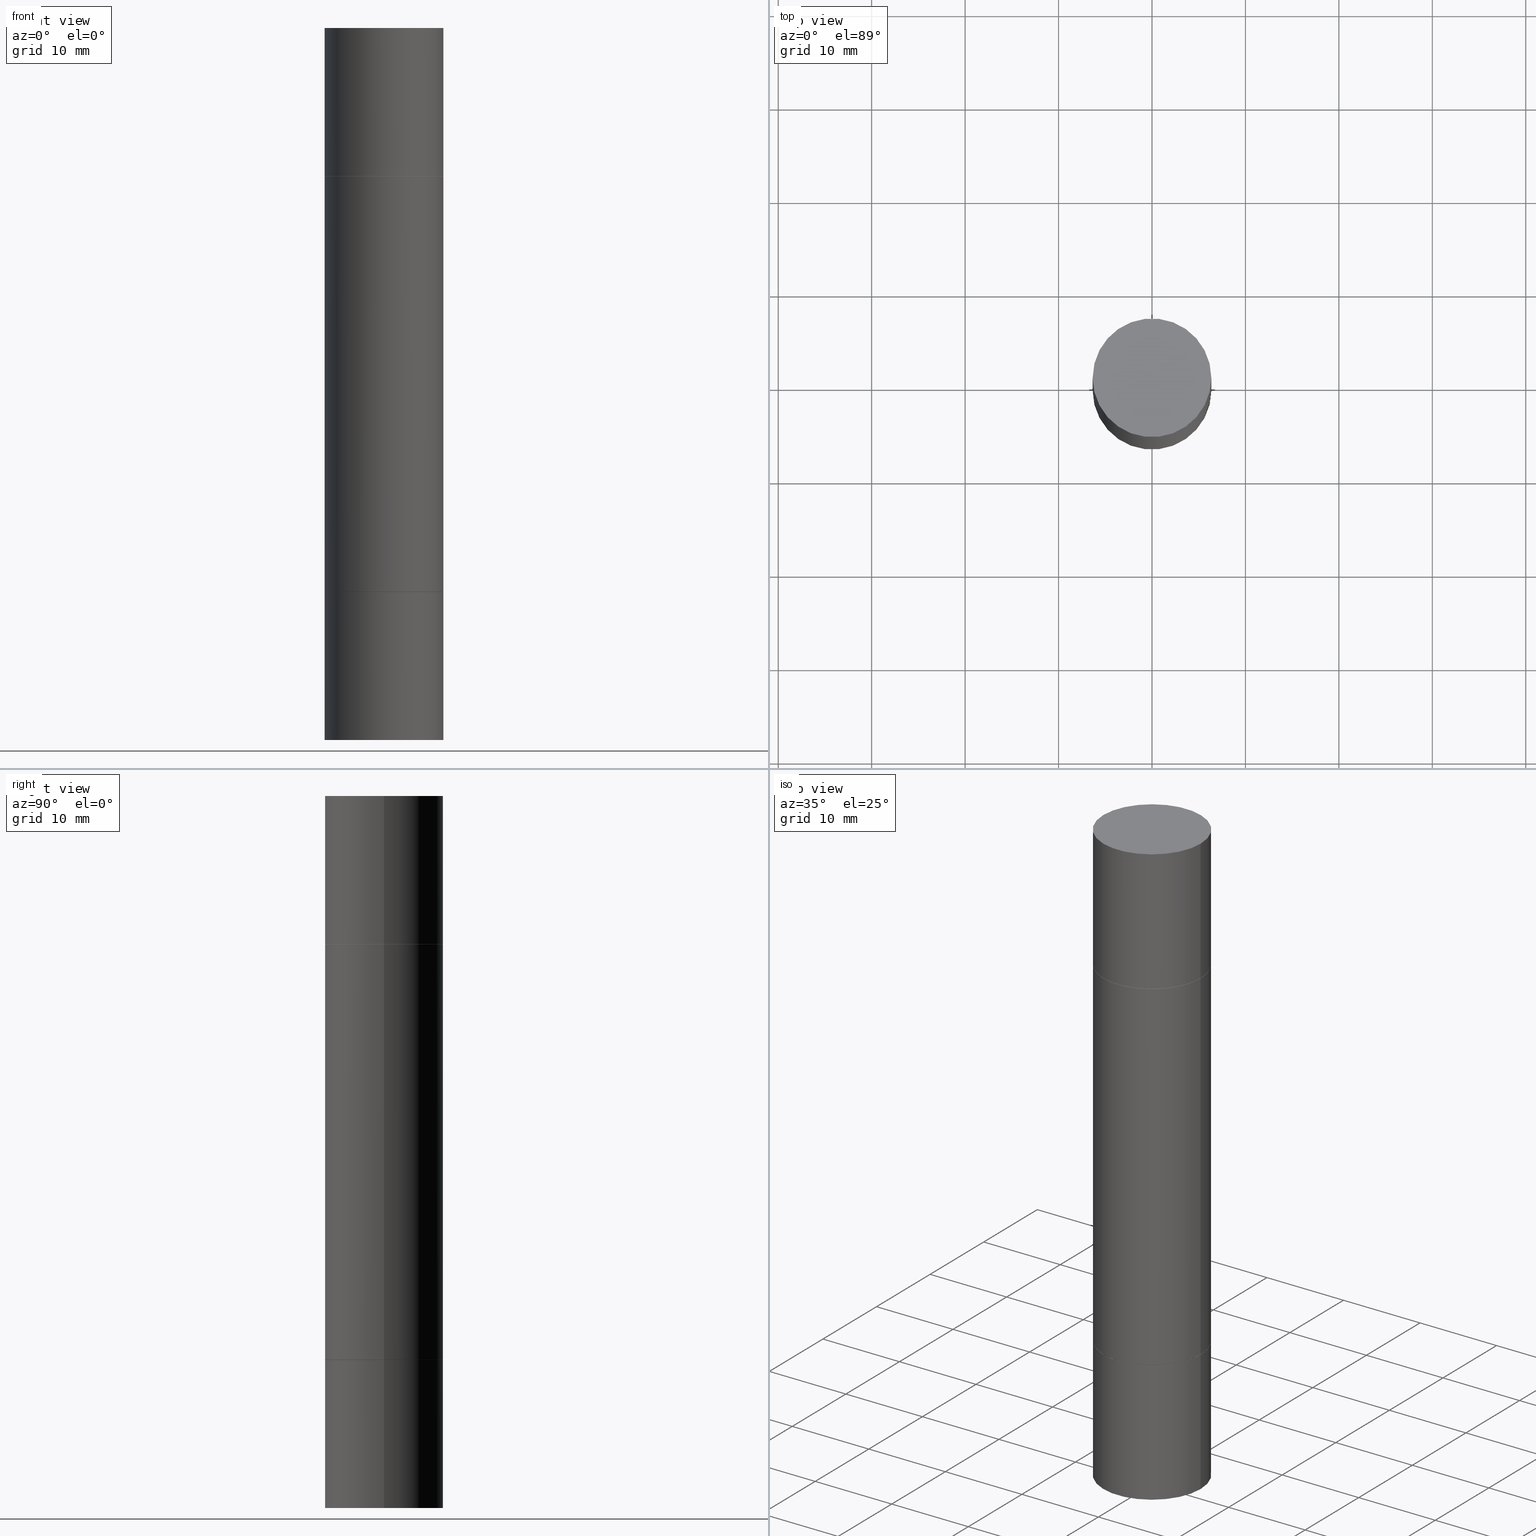
[diagram: canonical four-view strip — front | top / right | iso, engineering-drawing reading convention]
A machine part, canonical four-view strip (front | top / right | iso — engineering-drawing reading convention). The complete STEP part file that produces these views, byte-faithful:
ISO-10303-21;
HEADER;
FILE_DESCRIPTION (( 'STEP AP203' ),
    '1' );
FILE_NAME ('31439.STEP',
    '2024-03-04T15:41:59',
    ( '' ),
    ( '' ),
    'SwSTEP 2.0',
    'SolidWorks 2023',
    '' );
FILE_SCHEMA (( 'CONFIG_CONTROL_DESIGN' ));
ENDSEC;

DATA;
#1 = CARTESIAN_POINT ( 'NONE',  ( 1.745740669421639647E-15, 0.2499999999999895084, -3.000000000000001332 ) ) ;
#2 = AXIS2_PLACEMENT_3D ( 'NONE', #362, #577, #310 ) ;
#3 = DIRECTION ( 'NONE',  ( 1.000000000000000000, -6.982962677686269866E-15, 0.000000000000000000 ) ) ;
#4 = CONICAL_SURFACE ( 'NONE', #574, 0.2489999999999999991, 0.7853981633974141952 ) ;
#5 = APPLICATION_PROTOCOL_DEFINITION ( 'international standard', 'config_control_design', 1994, #153 ) ;
#6 = DIRECTION ( 'NONE',  ( -2.445468806185136877E-29, -3.492890411551753071E-15, -1.000000000000000000 ) ) ;
#7 = EDGE_LOOP ( 'NONE', ( #33, #468 ) ) ;
#8 = EDGE_CURVE ( 'NONE', #83, #460, #102, .T. ) ;
#9 = EDGE_CURVE ( 'NONE', #83, #144, #500, .T. ) ;
#10 = FACE_OUTER_BOUND ( 'NONE', #363, .T. ) ;
#11 = DIRECTION ( 'NONE',  ( -2.445468806185136597E-29, -3.492890411551752677E-15, -1.000000000000000000 ) ) ;
#12 = DIRECTION ( 'NONE',  ( 1.000000000000000000, -6.982962677686269866E-15, 0.000000000000000000 ) ) ;
#13 = EDGE_CURVE ( 'NONE', #666, #244, #616, .T. ) ;
#14 = ORIENTED_EDGE ( 'NONE', *, *, #49, .F. ) ;
#15 = CARTESIAN_POINT ( 'NONE',  ( 5.805542945883514935E-29, -2.184435788568482141E-15, -0.6259999999999990017 ) ) ;
#16 = CONICAL_SURFACE ( 'NONE', #445, 0.2489999999999999991, 0.7853981633974141952 ) ;
#17 = ORIENTED_EDGE ( 'NONE', *, *, #436, .T. ) ;
#18 = EDGE_CURVE ( 'NONE', #606, #84, #285, .T. ) ;
#19 = DIRECTION ( 'NONE',  ( 1.000000000000000000, -6.982962677686267499E-15, 0.000000000000000000 ) ) ;
#20 = DIRECTION ( 'NONE',  ( 1.000000000000000000, -6.982962677686266711E-15, 0.000000000000000000 ) ) ;
#21 = ORIENTED_EDGE ( 'NONE', *, *, #106, .T. ) ;
#22 = APPROVAL_DATE_TIME ( #599, #631 ) ;
#23 = LINE ( 'NONE', #235, #126 ) ;
#24 = AXIS2_PLACEMENT_3D ( 'NONE', #41, #210, #313 ) ;
#25 = FACE_OUTER_BOUND ( 'NONE', #80, .T. ) ;
#26 = ORIENTED_EDGE ( 'NONE', *, *, #494, .F. ) ;
#27 = ORIENTED_EDGE ( 'NONE', *, *, #49, .T. ) ;
#28 = DIRECTION ( 'NONE',  ( -2.445468806185136597E-29, -3.492890411551752677E-15, -1.000000000000000000 ) ) ;
#29 = EDGE_LOOP ( 'NONE', ( #74, #663 ) ) ;
#30 = EDGE_LOOP ( 'NONE', ( #325, #136, #141, #137 ) ) ;
#31 = ORIENTED_EDGE ( 'NONE', *, *, #204, .F. ) ;
#32 = CARTESIAN_POINT ( 'NONE',  ( 3.668203209277703774E-29, -5.237222008264716599E-15, -1.499999999999999556 ) ) ;
#33 = ORIENTED_EDGE ( 'NONE', *, *, #121, .T. ) ;
#34 = ORIENTED_EDGE ( 'NONE', *, *, #376, .F. ) ;
#35 = AXIS2_PLACEMENT_3D ( 'NONE', #668, #305, #95 ) ;
#36 = LOCAL_TIME ( 10, 41, 59.00000000000000000, #383 ) ;
#37 = CARTESIAN_POINT ( 'NONE',  ( 0.000000000000000000, 0.000000000000000000, -1.499999999999999556 ) ) ;
#38 = VERTEX_POINT ( 'NONE', #256 ) ;
#39 = DIRECTION ( 'NONE',  ( 0.000000000000000000, 1.000000000000000000, -3.278217592397118229E-15 ) ) ;
#40 = ORIENTED_EDGE ( 'NONE', *, *, #644, .T. ) ;
#41 = CARTESIAN_POINT ( 'NONE',  ( 5.807988414689700538E-29, -2.180942898156930788E-15, -0.6249999999999988898 ) ) ;
#42 = CARTESIAN_POINT ( 'NONE',  ( 0.2500000000000000000, -3.930176457990049608E-15, -0.6259999999999990017 ) ) ;
#43 = ADVANCED_FACE ( 'NONE', ( #421 ), #209, .T. ) ;
#44 = ORIENTED_EDGE ( 'NONE', *, *, #207, .F. ) ;
#45 = AXIS2_PLACEMENT_3D ( 'NONE', #365, #515, #373 ) ;
#46 = CIRCLE ( 'NONE', #56, 0.2500000000000000000 ) ;
#47 = CARTESIAN_POINT ( 'NONE',  ( 5.807988414689700538E-29, -2.180942898156930788E-15, -0.6249999999999988898 ) ) ;
#48 = DIRECTION ( 'NONE',  ( 2.438088387897959769E-29, 3.492890411551753071E-15, 1.000000000000000000 ) ) ;
#49 = EDGE_CURVE ( 'NONE', #656, #619, #154, .T. ) ;
#50 = FACE_OUTER_BOUND ( 'NONE', #190, .T. ) ;
#51 = FACE_OUTER_BOUND ( 'NONE', #504, .T. ) ;
#52 = CARTESIAN_POINT ( 'NONE',  ( 0.2489999999999999991, -3.919700604900811057E-15, -0.6249999999999988898 ) ) ;
#53 = DIRECTION ( 'NONE',  ( 1.000000000000000000, -6.982962677686266711E-15, 0.000000000000000000 ) ) ;
#54 = CALENDAR_DATE ( 2024, 4, 3 ) ;
#55 = CIRCLE ( 'NONE', #193, 0.2500000000000000000 ) ;
#56 = AXIS2_PLACEMENT_3D ( 'NONE', #586, #115, #385 ) ;
#57 = DIRECTION ( 'NONE',  ( 2.438088387897959769E-29, 3.492890411551753071E-15, 1.000000000000000000 ) ) ;
#58 = ADVANCED_FACE ( 'NONE', ( #426 ), #157, .T. ) ;
#59 =( CONVERSION_BASED_UNIT ( 'INCH', #529 ) LENGTH_UNIT ( ) NAMED_UNIT ( #148 ) );
#60 = ADVANCED_FACE ( 'NONE', ( #314 ), #476, .F. ) ;
#61 = DIRECTION ( 'NONE',  ( 1.000000000000000000, -6.982962677686265922E-15, 4.876176775795935793E-29 ) ) ;
#62 = ADVANCED_FACE ( 'NONE', ( #51 ), #100, .T. ) ;
#63 = CYLINDRICAL_SURFACE ( 'NONE', #225, 0.2500000000000000000 ) ;
#64 = EDGE_CURVE ( 'NONE', #651, #123, #311, .T. ) ;
#65 = APPROVAL_STATUS ( 'not_yet_approved' ) ;
#66 = CARTESIAN_POINT ( 'NONE',  ( 5.807988414689700538E-29, -8.292268179752471696E-15, -2.375000000000000000 ) ) ;
#67 = PRODUCT_DEFINITION_FORMATION_WITH_SPECIFIED_SOURCE ( 'ANY', '', #575, .NOT_KNOWN. ) ;
#68 =( NAMED_UNIT ( * ) SI_UNIT ( $, .STERADIAN. ) SOLID_ANGLE_UNIT ( ) );
#69 = ORIENTED_EDGE ( 'NONE', *, *, #97, .F. ) ;
#70 = DIRECTION ( 'NONE',  ( -2.445468806185136597E-29, -3.492890411551752677E-15, -1.000000000000000000 ) ) ;
#71 = DIRECTION ( 'NONE',  ( 1.000000000000000000, -6.982962677686270655E-15, 0.000000000000000000 ) ) ;
#72 = PERSON_AND_ORGANIZATION ( #555, #392 ) ;
#73 = CARTESIAN_POINT ( 'NONE',  ( 0.2500000000000000000, -3.926683567578497071E-15, -0.6249999999999988898 ) ) ;
#74 = ORIENTED_EDGE ( 'NONE', *, *, #350, .T. ) ;
#75 = VECTOR ( 'NONE', #261, 39.37007874015748143 ) ;
#76 = EDGE_CURVE ( 'NONE', #244, #666, #214, .T. ) ;
#77 = APPROVAL_DATE_TIME ( #122, #246 ) ;
#78 = CARTESIAN_POINT ( 'NONE',  ( -0.2489999999999999991, -4.709950929187094786E-16, -0.6249999999999988898 ) ) ;
#79 = EDGE_CURVE ( 'NONE', #354, #257, #379, .T. ) ;
#80 = EDGE_LOOP ( 'NONE', ( #237, #26 ) ) ;
#81 = ORIENTED_EDGE ( 'NONE', *, *, #436, .F. ) ;
#82 = DIRECTION ( 'NONE',  ( 0.000000000000000000, 1.000000000000000000, -3.492185875197449524E-15 ) ) ;
#83 = VERTEX_POINT ( 'NONE', #42 ) ;
#84 = VERTEX_POINT ( 'NONE', #367 ) ;
#85 = EDGE_CURVE ( 'NONE', #198, #659, #334, .T. ) ;
#86 = DIRECTION ( 'NONE',  ( -2.445468806185136597E-29, 3.491481338843145583E-15, 1.000000000000000000 ) ) ;
#87 = VERTEX_POINT ( 'NONE', #318 ) ;
#88 = VECTOR ( 'NONE', #423, 39.37007874015748143 ) ;
#89 = MANIFOLD_SOLID_BREP ( 'Mirror1[3]', #572 ) ;
#90 = ADVANCED_BREP_SHAPE_REPRESENTATION ( '31439', ( #330, #105, #89, #101, #549, #446 ), #381 ) ;
#91 = CONICAL_SURFACE ( 'NONE', #537, 0.2489999999999999991, 0.7853981633974141952 ) ;
#92 = LOCAL_TIME ( 10, 41, 59.00000000000000000, #177 ) ;
#93 = CARTESIAN_POINT ( 'NONE',  ( 5.807988414689700538E-29, -2.180942898156930788E-15, -0.6249999999999988898 ) ) ;
#94 = ORIENTED_EDGE ( 'NONE', *, *, #644, .F. ) ;
#95 = DIRECTION ( 'NONE',  ( 1.000000000000000000, -6.982962677686266711E-15, 0.000000000000000000 ) ) ;
#96 = DIRECTION ( 'NONE',  ( 1.000000000000000000, -6.982962677686266711E-15, 0.000000000000000000 ) ) ;
#97 = EDGE_CURVE ( 'NONE', #659, #198, #389, .T. ) ;
#98 = ORIENTED_EDGE ( 'NONE', *, *, #121, .F. ) ;
#99 = DIRECTION ( 'NONE',  ( -1.000000000000000000, 6.982962677686265922E-15, -9.839502134516470631E-33 ) ) ;
#100 = CYLINDRICAL_SURFACE ( 'NONE', #2, 0.2500000000000000000 ) ;
#101 = MANIFOLD_SOLID_BREP ( 'Mirror1[4]', #583 ) ;
#102 = CIRCLE ( 'NONE', #345, 0.2500000000000000000 ) ;
#103 = AXIS2_PLACEMENT_3D ( 'NONE', #1, #108, #366 ) ;
#104 = CARTESIAN_POINT ( 'NONE',  ( -0.2500000000000000000, -4.693112891255996450E-16, -0.6259999999999990017 ) ) ;
#105 = MANIFOLD_SOLID_BREP ( 'Mirror1[1]', #202 ) ;
#106 = EDGE_CURVE ( 'NONE', #198, #664, #523, .T. ) ;
#107 = DIRECTION ( 'NONE',  ( -2.445468806185136877E-29, -3.492890411551753071E-15, -1.000000000000000000 ) ) ;
#108 = DIRECTION ( 'NONE',  ( 2.438088387897960049E-29, -3.491481338843145188E-15, -1.000000000000000000 ) ) ;
#109 = DIRECTION ( 'NONE',  ( -1.000000000000000000, 6.982962677686265922E-15, -9.839502134516470631E-33 ) ) ;
#110 = DIRECTION ( 'NONE',  ( -2.445468806185136597E-29, 3.491481338843145583E-15, 1.000000000000000000 ) ) ;
#111 = ORIENTED_EDGE ( 'NONE', *, *, #349, .F. ) ;
#112 = ORIENTED_EDGE ( 'NONE', *, *, #376, .T. ) ;
#113 = DIRECTION ( 'NONE',  ( -2.445468806185136597E-29, 3.491481338843145583E-15, 1.000000000000000000 ) ) ;
#114 = AXIS2_PLACEMENT_3D ( 'NONE', #605, #145, #135 ) ;
#115 = DIRECTION ( 'NONE',  ( 2.445468806185136597E-29, 3.492890411551752677E-15, 1.000000000000000000 ) ) ;
#116 = ORIENTED_EDGE ( 'NONE', *, *, #567, .F. ) ;
#117 = FACE_OUTER_BOUND ( 'NONE', #155, .T. ) ;
#118 = EDGE_CURVE ( 'NONE', #656, #542, #248, .T. ) ;
#119 = PERSON_AND_ORGANIZATION ( #555, #392 ) ;
#120 = DIRECTION ( 'NONE',  ( -2.445468806185136597E-29, 3.491481338843145583E-15, 1.000000000000000000 ) ) ;
#121 = EDGE_CURVE ( 'NONE', #619, #498, #368, .T. ) ;
#122 = DATE_AND_TIME ( #592, #538 ) ;
#123 = VERTEX_POINT ( 'NONE', #618 ) ;
#124 = LINE ( 'NONE', #636, #518 ) ;
#125 = AXIS2_PLACEMENT_3D ( 'NONE', #623, #48, #517 ) ;
#126 = VECTOR ( 'NONE', #293, 39.37007874015748143 ) ;
#127 = APPROVAL_PERSON_ORGANIZATION ( #229, #430, #441 ) ;
#128 = ORIENTED_EDGE ( 'NONE', *, *, #9, .T. ) ;
#129 = DIRECTION ( 'NONE',  ( 1.000000000000000000, -6.982962677686270655E-15, 0.000000000000000000 ) ) ;
#130 = EDGE_CURVE ( 'NONE', #547, #257, #474, .T. ) ;
#131 = DIRECTION ( 'NONE',  ( 1.000000000000000000, -6.982962677686266711E-15, 4.876176775795935793E-29 ) ) ;
#132 = ORIENTED_EDGE ( 'NONE', *, *, #290, .T. ) ;
#133 = ADVANCED_FACE ( 'NONE', ( #628 ), #165, .T. ) ;
#134 = PERSON_AND_ORGANIZATION ( #555, #392 ) ;
#135 = DIRECTION ( 'NONE',  ( 1.000000000000000000, -6.982962677686262766E-15, 0.000000000000000000 ) ) ;
#136 = ORIENTED_EDGE ( 'NONE', *, *, #349, .T. ) ;
#137 = ORIENTED_EDGE ( 'NONE', *, *, #233, .F. ) ;
#138 = CC_DESIGN_PERSON_AND_ORGANIZATION_ASSIGNMENT ( #652, #292, ( #67 ) ) ;
#139 = AXIS2_PLACEMENT_3D ( 'NONE', #270, #327, #232 ) ;
#140 = CARTESIAN_POINT ( 'NONE',  ( -0.2500000000000000000, -4.693112891255996450E-16, -0.6259999999999990017 ) ) ;
#141 = ORIENTED_EDGE ( 'NONE', *, *, #472, .T. ) ;
#142 = ORIENTED_EDGE ( 'NONE', *, *, #481, .T. ) ;
#143 = ADVANCED_FACE ( 'NONE', ( #484 ), #230, .T. ) ;
#144 = VERTEX_POINT ( 'NONE', #340 ) ;
#145 = DIRECTION ( 'NONE',  ( -2.445468806185136597E-29, 3.491481338843145583E-15, 1.000000000000000000 ) ) ;
#146 = ORIENTED_EDGE ( 'NONE', *, *, #130, .T. ) ;
#147 = EDGE_LOOP ( 'NONE', ( #411, #34 ) ) ;
#148 = DIMENSIONAL_EXPONENTS ( 1.000000000000000000, 0.000000000000000000, 0.000000000000000000, 0.000000000000000000, 0.000000000000000000, 0.000000000000000000, 0.000000000000000000 ) ;
#149 = CARTESIAN_POINT ( 'NONE',  ( 5.807988414689700538E-29, -8.292268179752471696E-15, -2.375000000000000000 ) ) ;
#150 = ORIENTED_EDGE ( 'NONE', *, *, #8, .F. ) ;
#151 = AXIS2_PLACEMENT_3D ( 'NONE', #220, #329, #428 ) ;
#152 = CARTESIAN_POINT ( 'NONE',  ( 5.805542945883514935E-29, -2.184435788568482141E-15, -0.6259999999999990017 ) ) ;
#153 = APPLICATION_CONTEXT ( 'configuration controlled 3d designs of mechanical parts and assemblies' ) ;
#154 = LINE ( 'NONE', #466, #301 ) ;
#155 = EDGE_LOOP ( 'NONE', ( #553, #602, #585, #247 ) ) ;
#156 = CARTESIAN_POINT ( 'NONE',  ( 0.2489999999999999991, -3.919700604900811057E-15, -0.6249999999999988898 ) ) ;
#157 = PLANE ( 'NONE',  #548 ) ;
#158 = ADVANCED_FACE ( 'NONE', ( #181 ), #63, .T. ) ;
#159 = PLANE ( 'NONE',  #277 ) ;
#160 = DIRECTION ( 'NONE',  ( 0.7071067811865232589, -2.468850131082003836E-15, 0.7071067811865715536 ) ) ;
#161 = AXIS2_PLACEMENT_3D ( 'NONE', #669, #320, #579 ) ;
#162 = CIRCLE ( 'NONE', #35, 0.2500000000000000000 ) ;
#163 = CARTESIAN_POINT ( 'NONE',  ( 5.807988414689700538E-29, -2.180942898156930788E-15, -0.6249999999999988898 ) ) ;
#164 = CIRCLE ( 'NONE', #228, 0.2500000000000000000 ) ;
#165 = CYLINDRICAL_SURFACE ( 'NONE', #258, 0.2499999999999998335 ) ;
#166 = ADVANCED_FACE ( 'NONE', ( #223 ), #387, .T. ) ;
#167 = DIRECTION ( 'NONE',  ( -1.000000000000000000, 6.982962677686265922E-15, -4.876176775795935793E-29 ) ) ;
#168 = DIRECTION ( 'NONE',  ( 2.445468806185136597E-29, 3.492890411551752677E-15, 1.000000000000000000 ) ) ;
#169 = CARTESIAN_POINT ( 'NONE',  ( 0.2500000000000000000, -1.743627060358652092E-15, 1.092739197465705287E-15 ) ) ;
#170 = CARTESIAN_POINT ( 'NONE',  ( 0.000000000000000000, -1.047655762559234344E-14, -2.999999999999999112 ) ) ;
#171 = VECTOR ( 'NONE', #576, 39.37007874015748854 ) ;
#172 = EDGE_CURVE ( 'NONE', #84, #606, #400, .T. ) ;
#173 = DIRECTION ( 'NONE',  ( -2.438088387897960049E-29, 3.491481338843145188E-15, 1.000000000000000000 ) ) ;
#174 = CONICAL_SURFACE ( 'NONE', #217, 0.2489999999999999991, 0.7853981633974141952 ) ;
#175 = PERSON_AND_ORGANIZATION_ROLE ( 'design_owner' ) ;
#176 = CARTESIAN_POINT ( 'NONE',  ( 0.2489999999999999991, -1.003102588649635236E-14, -2.375000000000000000 ) ) ;
#177 = COORDINATED_UNIVERSAL_TIME_OFFSET ( 5, 0, .BEHIND. ) ;
#178 = CARTESIAN_POINT ( 'NONE',  ( -0.2500000000000000000, 6.257098548958748880E-16, 1.092739197465709232E-15 ) ) ;
#179 = ORIENTED_EDGE ( 'NONE', *, *, #9, .F. ) ;
#180 = PERSON_AND_ORGANIZATION_ROLE ( 'design_supplier' ) ;
#181 = FACE_OUTER_BOUND ( 'NONE', #300, .T. ) ;
#182 = CIRCLE ( 'NONE', #114, 0.2500000000000000000 ) ;
#183 = LOCAL_TIME ( 10, 41, 59.00000000000000000, #649 ) ;
#184 = DATE_AND_TIME ( #344, #183 ) ;
#185 = FACE_OUTER_BOUND ( 'NONE', #532, .T. ) ;
#186 = EDGE_LOOP ( 'NONE', ( #596, #94 ) ) ;
#187 = COORDINATED_UNIVERSAL_TIME_OFFSET ( 5, 0, .BEHIND. ) ;
#188 = CC_DESIGN_DATE_AND_TIME_ASSIGNMENT ( #184, #393, ( #478 ) ) ;
#189 = LINE ( 'NONE', #398, #369 ) ;
#190 = EDGE_LOOP ( 'NONE', ( #552, #276, #295, #603 ) ) ;
#191 = CARTESIAN_POINT ( 'NONE',  ( 0.000000000000000000, 0.000000000000000000, 0.000000000000000000 ) ) ;
#192 = CARTESIAN_POINT ( 'NONE',  ( 0.2499999999999998335, -1.222229829501391012E-14, -2.999999999999999112 ) ) ;
#193 = AXIS2_PLACEMENT_3D ( 'NONE', #590, #120, #641 ) ;
#194 = CYLINDRICAL_SURFACE ( 'NONE', #347, 0.2499999999999998335 ) ;
#195 = EDGE_LOOP ( 'NONE', ( #116, #150, #128, #339 ) ) ;
#196 = CC_DESIGN_PERSON_AND_ORGANIZATION_ASSIGNMENT ( #341, #180, ( #67 ) ) ;
#197 = FACE_OUTER_BOUND ( 'NONE', #29, .T. ) ;
#198 = VERTEX_POINT ( 'NONE', #176 ) ;
#199 = ORIENTED_EDGE ( 'NONE', *, *, #667, .F. ) ;
#200 = CARTESIAN_POINT ( 'NONE',  ( -0.2500000000000000000, -8.761433126149462132E-15, -2.999999999999999112 ) ) ;
#201 = DIRECTION ( 'NONE',  ( 1.000000000000000000, -6.982962677686269866E-15, 0.000000000000000000 ) ) ;
#202 = CLOSED_SHELL ( 'NONE', ( #440, #331, #372, #658, #241, #166 ) ) ;
#203 = APPROVAL_PERSON_ORGANIZATION ( #534, #246, #274 ) ;
#204 = EDGE_CURVE ( 'NONE', #659, #513, #227, .T. ) ;
#205 = DIRECTION ( 'NONE',  ( -2.445468806185136597E-29, -3.492890411551752677E-15, -1.000000000000000000 ) ) ;
#206 = CARTESIAN_POINT ( 'NONE',  ( 7.336406418555409790E-29, 2.113609062914567177E-18, 1.092739197465705287E-15 ) ) ;
#207 = EDGE_CURVE ( 'NONE', #498, #619, #55, .T. ) ;
#208 = DIRECTION ( 'NONE',  ( 1.000000000000000000, -6.982962677686266711E-15, 0.000000000000000000 ) ) ;
#209 = PLANE ( 'NONE',  #125 ) ;
#210 = DIRECTION ( 'NONE',  ( 2.445468806185136597E-29, 3.492890411551752677E-15, 1.000000000000000000 ) ) ;
#211 = DIRECTION ( 'NONE',  ( 1.000000000000000000, -6.982962677686266711E-15, 0.000000000000000000 ) ) ;
#212 = EDGE_CURVE ( 'NONE', #84, #664, #480, .T. ) ;
#213 = EDGE_CURVE ( 'NONE', #621, #405, #443, .T. ) ;
#214 = CIRCLE ( 'NONE', #434, 0.2500000000000000000 ) ;
#215 = CIRCLE ( 'NONE', #424, 0.2489999999999999991 ) ;
#216 = LINE ( 'NONE', #200, #467 ) ;
#217 = AXIS2_PLACEMENT_3D ( 'NONE', #539, #113, #12 ) ;
#218 = DIRECTION ( 'NONE',  ( -2.445468806185136597E-29, 3.491481338843145583E-15, 1.000000000000000000 ) ) ;
#219 = DIRECTION ( 'NONE',  ( 0.000000000000000000, 0.000000000000000000, 1.000000000000000000 ) ) ;
#220 = CARTESIAN_POINT ( 'NONE',  ( 5.807988414689700538E-29, -2.180942898156930788E-15, -0.6249999999999988898 ) ) ;
#221 = EDGE_CURVE ( 'NONE', #38, #547, #46, .T. ) ;
#222 = LINE ( 'NONE', #531, #519 ) ;
#223 = FACE_OUTER_BOUND ( 'NONE', #195, .T. ) ;
#224 = ORIENTED_EDGE ( 'NONE', *, *, #64, .T. ) ;
#225 = AXIS2_PLACEMENT_3D ( 'NONE', #432, #544, #129 ) ;
#226 = CIRCLE ( 'NONE', #660, 0.2500000000000000000 ) ;
#227 = LINE ( 'NONE', #323, #646 ) ;
#228 = AXIS2_PLACEMENT_3D ( 'NONE', #371, #676, #316 ) ;
#229 = PERSON_AND_ORGANIZATION ( #555, #392 ) ;
#230 = CYLINDRICAL_SURFACE ( 'NONE', #139, 0.2499999999999998335 ) ;
#231 = APPROVAL_STATUS ( 'not_yet_approved' ) ;
#232 = DIRECTION ( 'NONE',  ( 1.000000000000000000, -6.982962677686267499E-15, 0.000000000000000000 ) ) ;
#233 = EDGE_CURVE ( 'NONE', #651, #83, #124, .T. ) ;
#234 = CLOSED_SHELL ( 'NONE', ( #670, #133, #502, #60, #324, #143, #370, #254 ) ) ;
#235 = CARTESIAN_POINT ( 'NONE',  ( 0.2500000000000000000, -1.222229829501391170E-14, -2.999999999999999112 ) ) ;
#236 = CIRCLE ( 'NONE', #584, 0.2499999999999998335 ) ;
#237 = ORIENTED_EDGE ( 'NONE', *, *, #79, .F. ) ;
#238 = CARTESIAN_POINT ( 'NONE',  ( -0.2489999999999999991, -4.726788967118193123E-16, -0.6249999999999988898 ) ) ;
#239 = ORIENTED_EDGE ( 'NONE', *, *, #637, .T. ) ;
#240 = ORIENTED_EDGE ( 'NONE', *, *, #212, .T. ) ;
#241 = ADVANCED_FACE ( 'NONE', ( #541 ), #91, .T. ) ;
#242 = DIRECTION ( 'NONE',  ( 2.438088387897959769E-29, 3.492890411551753071E-15, 1.000000000000000000 ) ) ;
#243 = ORIENTED_EDGE ( 'NONE', *, *, #106, .F. ) ;
#244 = VERTEX_POINT ( 'NONE', #178 ) ;
#245 = DIRECTION ( 'NONE',  ( -2.445468806185136877E-29, 3.491481338843145188E-15, 1.000000000000000000 ) ) ;
#246 = APPROVAL ( #65, 'UNSPECIFIED' ) ;
#247 = ORIENTED_EDGE ( 'NONE', *, *, #79, .T. ) ;
#248 = CIRCLE ( 'NONE', #321, 0.2500000000000000000 ) ;
#249 = CIRCLE ( 'NONE', #629, 0.2499999999999998335 ) ;
#250 = DIRECTION ( 'NONE',  ( 0.000000000000000000, 1.000000000000000000, -3.278217592397118229E-15 ) ) ;
#251 = ORIENTED_EDGE ( 'NONE', *, *, #589, .F. ) ;
#252 = DIRECTION ( 'NONE',  ( 1.000000000000000000, -6.982962677686266711E-15, 0.000000000000000000 ) ) ;
#253 = ORIENTED_EDGE ( 'NONE', *, *, #8, .T. ) ;
#254 = ADVANCED_FACE ( 'NONE', ( #382 ), #535, .F. ) ;
#255 = CARTESIAN_POINT ( 'NONE',  ( -0.2500000000000000000, -7.606999258740704349E-15, -3.000000000000000444 ) ) ;
#256 = CARTESIAN_POINT ( 'NONE',  ( 0.2500000000000000000, -1.743627060358652092E-15, 1.092739197465705287E-15 ) ) ;
#257 = VERTEX_POINT ( 'NONE', #272 ) ;
#258 = AXIS2_PLACEMENT_3D ( 'NONE', #582, #70, #19 ) ;
#259 = AXIS2_PLACEMENT_3D ( 'NONE', #66, #173, #61 ) ;
#260 = ADVANCED_FACE ( 'NONE', ( #117 ), #533, .T. ) ;
#261 = DIRECTION ( 'NONE',  ( -2.445468806185136877E-29, -3.492890411551753071E-15, -1.000000000000000000 ) ) ;
#262 = DIRECTION ( 'NONE',  ( 1.000000000000000000, -6.982962677686266711E-15, 0.000000000000000000 ) ) ;
#263 = EDGE_CURVE ( 'NONE', #666, #458, #489, .T. ) ;
#264 = CARTESIAN_POINT ( 'NONE',  ( 0.000000000000000000, 0.000000000000000000, 0.000000000000000000 ) ) ;
#265 = CARTESIAN_POINT ( 'NONE',  ( 5.807988414689700538E-29, -8.292268179752471696E-15, -2.375000000000000000 ) ) ;
#266 = CARTESIAN_POINT ( 'NONE',  ( 0.2500000000000000000, -1.222018468595100303E-14, -3.000000000000000444 ) ) ;
#267 = DIRECTION ( 'NONE',  ( -2.445468806185136877E-29, 3.491481338843145188E-15, 1.000000000000000000 ) ) ;
#268 = VECTOR ( 'NONE', #299, 39.37007874015748854 ) ;
#269 = FACE_OUTER_BOUND ( 'NONE', #352, .T. ) ;
#270 = CARTESIAN_POINT ( 'NONE',  ( 0.000000000000000000, -1.047655762559234344E-14, -2.999999999999999112 ) ) ;
#271 =( NAMED_UNIT ( * ) PLANE_ANGLE_UNIT ( ) SI_UNIT ( $, .RADIAN. ) );
#272 = CARTESIAN_POINT ( 'NONE',  ( -0.2500000000000000000, 6.257098548958748880E-16, -0.6249999999999988898 ) ) ;
#273 = CARTESIAN_POINT ( 'NONE',  ( 0.000000000000000000, -1.047655762559234344E-14, -2.999999999999999112 ) ) ;
#274 = APPROVAL_ROLE ( '' ) ;
#275 = VECTOR ( 'NONE', #6, 39.37007874015748143 ) ;
#276 = ORIENTED_EDGE ( 'NONE', *, *, #448, .T. ) ;
#277 = AXIS2_PLACEMENT_3D ( 'NONE', #412, #522, #167 ) ;
#278 = DIRECTION ( 'NONE',  ( -2.445468806185136597E-29, -3.492890411551752677E-15, -1.000000000000000000 ) ) ;
#279 = PERSON_AND_ORGANIZATION ( #555, #392 ) ;
#280 = DIRECTION ( 'NONE',  ( 1.000000000000000000, -6.982962677686266711E-15, 0.000000000000000000 ) ) ;
#281 = EDGE_LOOP ( 'NONE', ( #291, #560, #98, #14 ) ) ;
#282 = APPROVAL_ROLE ( '' ) ;
#283 = FACE_OUTER_BOUND ( 'NONE', #30, .T. ) ;
#284 = ORIENTED_EDGE ( 'NONE', *, *, #76, .T. ) ;
#285 = CIRCLE ( 'NONE', #413, 0.2500000000000000000 ) ;
#286 = FACE_OUTER_BOUND ( 'NONE', #343, .T. ) ;
#287 = AXIS2_PLACEMENT_3D ( 'NONE', #152, #617, #516 ) ;
#288 = ORIENTED_EDGE ( 'NONE', *, *, #567, .T. ) ;
#289 = CC_DESIGN_SECURITY_CLASSIFICATION ( #478, ( #67 ) ) ;
#290 = EDGE_CURVE ( 'NONE', #547, #38, #226, .T. ) ;
#291 = ORIENTED_EDGE ( 'NONE', *, *, #118, .T. ) ;
#292 = PERSON_AND_ORGANIZATION_ROLE ( 'creator' ) ;
#293 = DIRECTION ( 'NONE',  ( -2.445468806185136877E-29, -3.492890411551753071E-15, -1.000000000000000000 ) ) ;
#294 = EDGE_LOOP ( 'NONE', ( #546, #132 ) ) ;
#295 = ORIENTED_EDGE ( 'NONE', *, *, #18, .T. ) ;
#296 = DIRECTION ( 'NONE',  ( 1.000000000000000000, -6.982962677686266711E-15, 0.000000000000000000 ) ) ;
#297 = ORIENTED_EDGE ( 'NONE', *, *, #494, .T. ) ;
#298 = EDGE_LOOP ( 'NONE', ( #540, #416, #17, #358 ) ) ;
#299 = DIRECTION ( 'NONE',  ( -0.7071067811865232589, 2.381258160591016070E-15, -0.7071067811865715536 ) ) ;
#300 = EDGE_LOOP ( 'NONE', ( #593, #146, #297, #315 ) ) ;
#301 = VECTOR ( 'NONE', #267, 39.37007874015748143 ) ;
#302 = UNCERTAINTY_MEASURE_WITH_UNIT (LENGTH_MEASURE( 1.000000000000000082E-05 ), #59, 'distance_accuracy_value', 'NONE');
#303 = CARTESIAN_POINT ( 'NONE',  ( -0.2500000000000000000, -3.522097508821832131E-15, -2.374000000000000110 ) ) ;
#304 = EDGE_LOOP ( 'NONE', ( #199, #559, #240, #488 ) ) ;
#305 = DIRECTION ( 'NONE',  ( 2.445468806185136597E-29, 3.492890411551752677E-15, 1.000000000000000000 ) ) ;
#306 = DIRECTION ( 'NONE',  ( 2.445468806185136597E-29, 3.492890411551752677E-15, 1.000000000000000000 ) ) ;
#307 = EDGE_LOOP ( 'NONE', ( #111, #612, #399, #253 ) ) ;
#308 = EDGE_LOOP ( 'NONE', ( #543, #284 ) ) ;
#309 = DIRECTION ( 'NONE',  ( 1.000000000000000000, -6.982962677686266711E-15, 0.000000000000000000 ) ) ;
#310 = DIRECTION ( 'NONE',  ( 1.000000000000000000, -6.982962677686270655E-15, 0.000000000000000000 ) ) ;
#311 = CIRCLE ( 'NONE', #505, 0.2489999999999999991 ) ;
#312 = AXIS2_PLACEMENT_3D ( 'NONE', #662, #86, #499 ) ;
#313 = DIRECTION ( 'NONE',  ( 1.000000000000000000, -6.982962677686266711E-15, 0.000000000000000000 ) ) ;
#314 = FACE_OUTER_BOUND ( 'NONE', #419, .T. ) ;
#315 = ORIENTED_EDGE ( 'NONE', *, *, #408, .F. ) ;
#316 = DIRECTION ( 'NONE',  ( 1.000000000000000000, -6.982962677686266711E-15, 0.000000000000000000 ) ) ;
#317 = CC_DESIGN_PERSON_AND_ORGANIZATION_ASSIGNMENT ( #279, #175, ( #575 ) ) ;
#318 = CARTESIAN_POINT ( 'NONE',  ( -0.2499999999999998335, -1.995704398973716874E-15, -1.499999999999999556 ) ) ;
#319 = APPLICATION_PROTOCOL_DEFINITION ( 'international standard', 'config_control_design', 1994, #580 ) ;
#320 = DIRECTION ( 'NONE',  ( 2.445468806185136597E-29, 3.492890411551752677E-15, 1.000000000000000000 ) ) ;
#321 = AXIS2_PLACEMENT_3D ( 'NONE', #573, #521, #633 ) ;
#322 = CIRCLE ( 'NONE', #24, 0.2489999999999999991 ) ;
#323 = CARTESIAN_POINT ( 'NONE',  ( -0.2489999999999999991, -6.523016767709821450E-15, -2.375000000000000000 ) ) ;
#324 = ADVANCED_FACE ( 'NONE', ( #491 ), #16, .T. ) ;
#325 = ORIENTED_EDGE ( 'NONE', *, *, #496, .F. ) ;
#326 = ORIENTED_EDGE ( 'NONE', *, *, #639, .F. ) ;
#327 = DIRECTION ( 'NONE',  ( -2.445468806185136597E-29, -3.492890411551752677E-15, -1.000000000000000000 ) ) ;
#328 = DATE_TIME_ROLE ( 'creation_date' ) ;
#329 = DIRECTION ( 'NONE',  ( 2.445468806185136597E-29, 3.492890411551752677E-15, 1.000000000000000000 ) ) ;
#330 = MANIFOLD_SOLID_BREP ( 'Body-Move/Copy2[1]', #527 ) ;
#331 = ADVANCED_FACE ( 'NONE', ( #283 ), #507, .T. ) ;
#332 = ADVANCED_FACE ( 'NONE', ( #286 ), #495, .T. ) ;
#333 = CARTESIAN_POINT ( 'NONE',  ( 5.807988414689700538E-29, -2.180942898156930788E-15, -0.6249999999999988898 ) ) ;
#334 = CIRCLE ( 'NONE', #657, 0.2489999999999999991 ) ;
#335 = ADVANCED_FACE ( 'NONE', ( #25 ), #342, .F. ) ;
#336 = VECTOR ( 'NONE', #645, 39.37007874015748143 ) ;
#337 = CARTESIAN_POINT ( 'NONE',  ( 5.807988414689700538E-29, -2.180942898156930788E-15, -0.6249999999999988898 ) ) ;
#338 = CC_DESIGN_APPROVAL ( #631, ( #478 ) ) ;
#339 = ORIENTED_EDGE ( 'NONE', *, *, #620, .F. ) ;
#340 = CARTESIAN_POINT ( 'NONE',  ( 0.2499999999999998335, -5.456569567838164864E-15, -1.499999999999999556 ) ) ;
#341 = PERSON_AND_ORGANIZATION ( #555, #392 ) ;
#342 = PLANE ( 'NONE',  #477 ) ;
#343 = EDGE_LOOP ( 'NONE', ( #348, #112, #27, #44 ) ) ;
#344 = CALENDAR_DATE ( 2024, 4, 3 ) ;
#345 = AXIS2_PLACEMENT_3D ( 'NONE', #451, #654, #607 ) ;
#346 = FACE_OUTER_BOUND ( 'NONE', #450, .T. ) ;
#347 = AXIS2_PLACEMENT_3D ( 'NONE', #447, #655, #650 ) ;
#348 = ORIENTED_EDGE ( 'NONE', *, *, #356, .F. ) ;
#349 = EDGE_CURVE ( 'NONE', #123, #460, #452, .T. ) ;
#350 = EDGE_CURVE ( 'NONE', #144, #87, #236, .T. ) ;
#351 = FACE_OUTER_BOUND ( 'NONE', #281, .T. ) ;
#352 = EDGE_LOOP ( 'NONE', ( #610, #431, #326, #243 ) ) ;
#353 = CARTESIAN_POINT ( 'NONE',  ( 5.807988414689700538E-29, -2.180942898156930788E-15, -0.6249999999999988898 ) ) ;
#354 = VERTEX_POINT ( 'NONE', #73 ) ;
#355 = CARTESIAN_POINT ( 'NONE',  ( 0.000000000000000000, -1.047655762559234344E-14, -2.999999999999999112 ) ) ;
#356 = EDGE_CURVE ( 'NONE', #542, #498, #189, .T. ) ;
#357 = AXIS2_PLACEMENT_3D ( 'NONE', #170, #11, #482 ) ;
#358 = ORIENTED_EDGE ( 'NONE', *, *, #212, .F. ) ;
#359 = AXIS2_PLACEMENT_3D ( 'NONE', #353, #601, #296 ) ;
#360 = ORIENTED_EDGE ( 'NONE', *, *, #213, .F. ) ;
#361 = DIRECTION ( 'NONE',  ( 2.438088387897959769E-29, 3.492890411551753071E-15, 1.000000000000000000 ) ) ;
#362 = CARTESIAN_POINT ( 'NONE',  ( 0.000000000000000000, -1.047655762559234344E-14, -2.999999999999999112 ) ) ;
#363 = EDGE_LOOP ( 'NONE', ( #224, #556 ) ) ;
#364 = CARTESIAN_POINT ( 'NONE',  ( 5.805542945883514935E-29, -8.288776698413628688E-15, -2.374000000000000110 ) ) ;
#365 = CARTESIAN_POINT ( 'NONE',  ( 5.807988414689700538E-29, -2.180942898156930788E-15, -0.6249999999999988898 ) ) ;
#366 = DIRECTION ( 'NONE',  ( -1.000000000000000000, 6.982962677686265922E-15, -4.876176775795935793E-29 ) ) ;
#367 = CARTESIAN_POINT ( 'NONE',  ( 0.2500000000000000000, -3.930176457990049608E-15, -0.6259999999999990017 ) ) ;
#368 = CIRCLE ( 'NONE', #627, 0.2500000000000000000 ) ;
#369 = VECTOR ( 'NONE', #245, 39.37007874015748143 ) ;
#370 = ADVANCED_FACE ( 'NONE', ( #613 ), #4, .T. ) ;
#371 = CARTESIAN_POINT ( 'NONE',  ( 5.807988414689700538E-29, -2.180942898156930788E-15, -0.6249999999999988898 ) ) ;
#372 = ADVANCED_FACE ( 'NONE', ( #197 ), #409, .F. ) ;
#373 = DIRECTION ( 'NONE',  ( 1.000000000000000000, -6.982962677686265922E-15, 9.839502134516470631E-33 ) ) ;
#374 = DIRECTION ( 'NONE',  ( -2.445468806185136877E-29, -3.492890411551753071E-15, -1.000000000000000000 ) ) ;
#375 = CARTESIAN_POINT ( 'NONE',  ( 1.745740669421639647E-15, 0.2500000000000000000, 5.463695987328526437E-16 ) ) ;
#376 = EDGE_CURVE ( 'NONE', #542, #656, #182, .T. ) ;
#377 = DATE_AND_TIME ( #386, #92 ) ;
#378 = DIRECTION ( 'NONE',  ( 1.000000000000000000, -6.982962677686266711E-15, 0.000000000000000000 ) ) ;
#379 = CIRCLE ( 'NONE', #161, 0.2500000000000000000 ) ;
#380 = AXIS2_PLACEMENT_3D ( 'NONE', #47, #205, #208 ) ;
#381 =( GEOMETRIC_REPRESENTATION_CONTEXT ( 3 ) GLOBAL_UNCERTAINTY_ASSIGNED_CONTEXT ( ( #302 ) ) GLOBAL_UNIT_ASSIGNED_CONTEXT ( ( #59, #271, #68 ) ) REPRESENTATION_CONTEXT ( 'NONE', 'WORKASPACE' ) );
#382 = FACE_OUTER_BOUND ( 'NONE', #403, .T. ) ;
#383 = COORDINATED_UNIVERSAL_TIME_OFFSET ( 5, 0, .BEHIND. ) ;
#384 = ADVANCED_FACE ( 'NONE', ( #346 ), #455, .T. ) ;
#385 = DIRECTION ( 'NONE',  ( 1.000000000000000000, -6.982962677686266711E-15, 0.000000000000000000 ) ) ;
#386 = CALENDAR_DATE ( 2024, 4, 3 ) ;
#387 = CYLINDRICAL_SURFACE ( 'NONE', #357, 0.2499999999999998335 ) ;
#388 = PERSON_AND_ORGANIZATION_ROLE ( 'classification_officer' ) ;
#389 = CIRCLE ( 'NONE', #536, 0.2489999999999999991 ) ;
#390 = AXIS2_PLACEMENT_3D ( 'NONE', #273, #278, #442 ) ;
#391 = DIRECTION ( 'NONE',  ( 2.445468806185136597E-29, 3.492890411551752677E-15, 1.000000000000000000 ) ) ;
#392 = ORGANIZATION ( 'UNSPECIFIED', 'UNSPECIFIED', '' ) ;
#393 = DATE_TIME_ROLE ( 'classification_date' ) ;
#394 = DIRECTION ( 'NONE',  ( -0.7071067811865232589, 2.381258160591016070E-15, -0.7071067811865715536 ) ) ;
#395 = VERTEX_POINT ( 'NONE', #558 ) ;
#396 = ORIENTED_EDGE ( 'NONE', *, *, #472, .F. ) ;
#397 = SHAPE_DEFINITION_REPRESENTATION ( #568, #90 ) ;
#398 = CARTESIAN_POINT ( 'NONE',  ( -0.2500000000000000000, 1.776356839400250465E-15, -1.229733772563726445E-29 ) ) ;
#399 = ORIENTED_EDGE ( 'NONE', *, *, #233, .T. ) ;
#400 = CIRCLE ( 'NONE', #485, 0.2500000000000000000 ) ;
#401 = DIRECTION ( 'NONE',  ( -2.445468806185136597E-29, 3.491481338843145583E-15, 1.000000000000000000 ) ) ;
#402 = AXIS2_PLACEMENT_3D ( 'NONE', #93, #514, #461 ) ;
#403 = EDGE_LOOP ( 'NONE', ( #407, #69 ) ) ;
#404 = PRODUCT_DEFINITION ( 'UNKNOWN', '', #67, #433 ) ;
#405 = VERTEX_POINT ( 'NONE', #78 ) ;
#406 = DIRECTION ( 'NONE',  ( 0.000000000000000000, 3.492185875197449524E-15, 1.000000000000000000 ) ) ;
#407 = ORIENTED_EDGE ( 'NONE', *, *, #85, .F. ) ;
#408 = EDGE_CURVE ( 'NONE', #38, #354, #23, .T. ) ;
#409 = PLANE ( 'NONE',  #638 ) ;
#410 = ORIENTED_EDGE ( 'NONE', *, *, #350, .F. ) ;
#411 = ORIENTED_EDGE ( 'NONE', *, *, #118, .F. ) ;
#412 = CARTESIAN_POINT ( 'NONE',  ( 1.745740669421624462E-15, 0.2499999999999917011, -2.375000000000000888 ) ) ;
#413 = AXIS2_PLACEMENT_3D ( 'NONE', #418, #674, #53 ) ;
#414 = CARTESIAN_POINT ( 'NONE',  ( 0.2489999999999999991, -1.003102588649635236E-14, -2.375000000000000000 ) ) ;
#415 = AXIS2_PLACEMENT_3D ( 'NONE', #191, #503, #131 ) ;
#416 = ORIENTED_EDGE ( 'NONE', *, *, #667, .T. ) ;
#417 = LINE ( 'NONE', #473, #171 ) ;
#418 = CARTESIAN_POINT ( 'NONE',  ( 5.805542945883514935E-29, -2.184435788568482141E-15, -0.6259999999999990017 ) ) ;
#419 = EDGE_LOOP ( 'NONE', ( #512, #239 ) ) ;
#420 = CARTESIAN_POINT ( 'NONE',  ( -0.2499999999999998335, -8.761433126149462132E-15, -2.999999999999999112 ) ) ;
#421 = FACE_OUTER_BOUND ( 'NONE', #308, .T. ) ;
#422 = DIRECTION ( 'NONE',  ( -2.445468806185136877E-29, -3.492890411551753071E-15, -1.000000000000000000 ) ) ;
#423 = DIRECTION ( 'NONE',  ( -2.445468806185136877E-29, -3.492890411551753071E-15, -1.000000000000000000 ) ) ;
#424 = AXIS2_PLACEMENT_3D ( 'NONE', #163, #571, #252 ) ;
#425 = CARTESIAN_POINT ( 'NONE',  ( 3.668203209277703774E-29, -5.237222008264716599E-15, -1.499999999999999556 ) ) ;
#426 = FACE_OUTER_BOUND ( 'NONE', #294, .T. ) ;
#427 = PERSON_AND_ORGANIZATION_ROLE ( 'creator' ) ;
#428 = DIRECTION ( 'NONE',  ( 1.000000000000000000, -6.982962677686266711E-15, 0.000000000000000000 ) ) ;
#429 = PLANE ( 'NONE',  #510 ) ;
#430 = APPROVAL ( #231, 'UNSPECIFIED' ) ;
#431 = ORIENTED_EDGE ( 'NONE', *, *, #204, .T. ) ;
#432 = CARTESIAN_POINT ( 'NONE',  ( 0.000000000000000000, -1.047655762559234344E-14, -2.999999999999999112 ) ) ;
#433 = DESIGN_CONTEXT ( 'detailed design', #153, 'design' ) ;
#434 = AXIS2_PLACEMENT_3D ( 'NONE', #525, #168, #96 ) ;
#435 = AXIS2_PLACEMENT_3D ( 'NONE', #264, #562, #520 ) ;
#436 = EDGE_CURVE ( 'NONE', #513, #664, #561, .T. ) ;
#437 = DIRECTION ( 'NONE',  ( -0.7071067811865232589, 7.493145998870265808E-15, 0.7071067811865715536 ) ) ;
#438 = DATE_AND_TIME ( #54, #36 ) ;
#439 = CARTESIAN_POINT ( 'NONE',  ( 0.2500000000000000000, -1.222229829501391170E-14, -2.999999999999999112 ) ) ;
#440 = ADVANCED_FACE ( 'NONE', ( #185 ), #194, .T. ) ;
#441 = APPROVAL_ROLE ( '' ) ;
#442 = DIRECTION ( 'NONE',  ( 1.000000000000000000, -6.982962677686270655E-15, 0.000000000000000000 ) ) ;
#443 = CIRCLE ( 'NONE', #151, 0.2489999999999999991 ) ;
#444 = APPROVAL_STATUS ( 'not_yet_approved' ) ;
#445 = AXIS2_PLACEMENT_3D ( 'NONE', #449, #28, #665 ) ;
#446 = AXIS2_PLACEMENT_3D ( 'NONE', #642, #219, #588 ) ;
#447 = CARTESIAN_POINT ( 'NONE',  ( 0.000000000000000000, -1.047655762559234344E-14, -2.999999999999999112 ) ) ;
#448 = EDGE_CURVE ( 'NONE', #405, #606, #611, .T. ) ;
#449 = CARTESIAN_POINT ( 'NONE',  ( 5.807988414689700538E-29, -2.180942898156930788E-15, -0.6249999999999988898 ) ) ;
#450 = EDGE_LOOP ( 'NONE', ( #457, #501, #40, #614 ) ) ;
#451 = CARTESIAN_POINT ( 'NONE',  ( 5.805542945883514935E-29, -2.184435788568482141E-15, -0.6259999999999990017 ) ) ;
#452 = LINE ( 'NONE', #238, #528 ) ;
#453 = ORIENTED_EDGE ( 'NONE', *, *, #97, .T. ) ;
#454 = AXIS2_PLACEMENT_3D ( 'NONE', #206, #462, #570 ) ;
#455 = CYLINDRICAL_SURFACE ( 'NONE', #486, 0.2500000000000000000 ) ;
#456 = CIRCLE ( 'NONE', #287, 0.2500000000000000000 ) ;
#457 = ORIENTED_EDGE ( 'NONE', *, *, #76, .F. ) ;
#458 = VERTEX_POINT ( 'NONE', #506 ) ;
#459 = DIRECTION ( 'NONE',  ( 1.000000000000000000, -6.982962677686269866E-15, 0.000000000000000000 ) ) ;
#460 = VERTEX_POINT ( 'NONE', #140 ) ;
#461 = DIRECTION ( 'NONE',  ( 1.000000000000000000, -6.982962677686266711E-15, 0.000000000000000000 ) ) ;
#462 = DIRECTION ( 'NONE',  ( 2.445468806185136597E-29, 3.492890411551752677E-15, 1.000000000000000000 ) ) ;
#463 = ORIENTED_EDGE ( 'NONE', *, *, #565, .T. ) ;
#464 = CARTESIAN_POINT ( 'NONE',  ( -0.2500000000000000000, 6.257098548958748880E-16, 1.092739197465709232E-15 ) ) ;
#465 = VECTOR ( 'NONE', #107, 39.37007874015748143 ) ;
#466 = CARTESIAN_POINT ( 'NONE',  ( 0.2500000000000000000, -1.745740669421566678E-15, 1.219044193948983948E-29 ) ) ;
#467 = VECTOR ( 'NONE', #422, 39.37007874015748143 ) ;
#468 = ORIENTED_EDGE ( 'NONE', *, *, #207, .T. ) ;
#469 = ADVANCED_FACE ( 'NONE', ( #351 ), #554, .T. ) ;
#470 = PLANE ( 'NONE',  #550 ) ;
#471 = CARTESIAN_POINT ( 'NONE',  ( 5.807988414689700538E-29, -8.292268179752471696E-15, -2.375000000000000000 ) ) ;
#472 = EDGE_CURVE ( 'NONE', #460, #83, #456, .T. ) ;
#473 = CARTESIAN_POINT ( 'NONE',  ( 0.2489999999999999991, -3.919700604900811057E-15, -0.6249999999999988898 ) ) ;
#474 = LINE ( 'NONE', #679, #88 ) ;
#475 = LINE ( 'NONE', #420, #75 ) ;
#476 = PLANE ( 'NONE',  #45 ) ;
#477 = AXIS2_PLACEMENT_3D ( 'NONE', #545, #242, #493 ) ;
#478 = SECURITY_CLASSIFICATION ( '', '', #604 ) ;
#479 = APPROVAL_DATE_TIME ( #438, #430 ) ;
#480 = LINE ( 'NONE', #530, #275 ) ;
#481 = EDGE_CURVE ( 'NONE', #458, #395, #608, .T. ) ;
#482 = DIRECTION ( 'NONE',  ( 1.000000000000000000, -6.982962677686267499E-15, 0.000000000000000000 ) ) ;
#483 = DIRECTION ( 'NONE',  ( 1.000000000000000000, -6.982962677686265922E-15, 9.839502134516470631E-33 ) ) ;
#484 = FACE_OUTER_BOUND ( 'NONE', #304, .T. ) ;
#485 = AXIS2_PLACEMENT_3D ( 'NONE', #15, #391, #20 ) ;
#486 = AXIS2_PLACEMENT_3D ( 'NONE', #355, #551, #71 ) ;
#487 = COORDINATED_UNIVERSAL_TIME_OFFSET ( 5, 0, .BEHIND. ) ;
#488 = ORIENTED_EDGE ( 'NONE', *, *, #639, .T. ) ;
#489 = LINE ( 'NONE', #439, #336 ) ;
#490 = CARTESIAN_POINT ( 'NONE',  ( -0.2489999999999999991, -6.517718313361599048E-15, -2.375000000000000000 ) ) ;
#491 = FACE_OUTER_BOUND ( 'NONE', #509, .T. ) ;
#492 = CALENDAR_DATE ( 2024, 4, 3 ) ;
#493 = DIRECTION ( 'NONE',  ( -1.000000000000000000, 6.982962677686265922E-15, -9.839502134516470631E-33 ) ) ;
#494 = EDGE_CURVE ( 'NONE', #257, #354, #162, .T. ) ;
#495 = CYLINDRICAL_SURFACE ( 'NONE', #415, 0.2500000000000000000 ) ;
#496 = EDGE_CURVE ( 'NONE', #123, #651, #322, .T. ) ;
#497 = ORIENTED_EDGE ( 'NONE', *, *, #13, .F. ) ;
#498 = VERTEX_POINT ( 'NONE', #564 ) ;
#499 = DIRECTION ( 'NONE',  ( 1.000000000000000000, -6.982962677686266711E-15, 0.000000000000000000 ) ) ;
#500 = LINE ( 'NONE', #192, #465 ) ;
#501 = ORIENTED_EDGE ( 'NONE', *, *, #589, .T. ) ;
#502 = ADVANCED_FACE ( 'NONE', ( #50 ), #671, .T. ) ;
#503 = DIRECTION ( 'NONE',  ( -2.445468806185136597E-29, 3.491481338843145583E-15, 1.000000000000000000 ) ) ;
#504 = EDGE_LOOP ( 'NONE', ( #251, #497, #675, #142 ) ) ;
#505 = AXIS2_PLACEMENT_3D ( 'NONE', #566, #306, #262 ) ;
#506 = CARTESIAN_POINT ( 'NONE',  ( 0.2500000000000000000, -3.926683567578497071E-15, -0.6249999999999988898 ) ) ;
#507 = CONICAL_SURFACE ( 'NONE', #359, 0.2489999999999999991, 0.7853981633974141952 ) ;
#508 = ADVANCED_FACE ( 'NONE', ( #624 ), #159, .F. ) ;
#509 = EDGE_LOOP ( 'NONE', ( #563, #360, #463, #661 ) ) ;
#510 = AXIS2_PLACEMENT_3D ( 'NONE', #333, #581, #483 ) ;
#511 = CARTESIAN_POINT ( 'NONE',  ( 0.2500000000000000000, -1.003800884917403837E-14, -2.375000000000000000 ) ) ;
#512 = ORIENTED_EDGE ( 'NONE', *, *, #213, .T. ) ;
#513 = VERTEX_POINT ( 'NONE', #303 ) ;
#514 = DIRECTION ( 'NONE',  ( 2.445468806185136597E-29, 3.492890411551752677E-15, 1.000000000000000000 ) ) ;
#515 = DIRECTION ( 'NONE',  ( -2.438088387897959769E-29, -3.492890411551753071E-15, -1.000000000000000000 ) ) ;
#516 = DIRECTION ( 'NONE',  ( 1.000000000000000000, -6.982962677686266711E-15, 0.000000000000000000 ) ) ;
#517 = DIRECTION ( 'NONE',  ( -1.000000000000000000, 6.982962677686265922E-15, -9.839502134516470631E-33 ) ) ;
#518 = VECTOR ( 'NONE', #635, 39.37007874015748854 ) ;
#519 = VECTOR ( 'NONE', #374, 39.37007874015748143 ) ;
#520 = DIRECTION ( 'NONE',  ( 1.000000000000000000, -6.982962677686266711E-15, 4.876176775795935793E-29 ) ) ;
#521 = DIRECTION ( 'NONE',  ( -2.445468806185136597E-29, 3.491481338843145583E-15, 1.000000000000000000 ) ) ;
#522 = DIRECTION ( 'NONE',  ( 2.438088387897960049E-29, -3.491481338843145188E-15, -1.000000000000000000 ) ) ;
#523 = LINE ( 'NONE', #414, #595 ) ;
#524 = MECHANICAL_CONTEXT ( 'NONE', #580, 'mechanical' ) ;
#525 = CARTESIAN_POINT ( 'NONE',  ( 7.336406418555409790E-29, 2.113609062914567177E-18, 1.092739197465705287E-15 ) ) ;
#526 = CC_DESIGN_PERSON_AND_ORGANIZATION_ASSIGNMENT ( #134, #388, ( #478 ) ) ;
#527 = CLOSED_SHELL ( 'NONE', ( #469, #587, #508, #332 ) ) ;
#528 = VECTOR ( 'NONE', #394, 39.37007874015748854 ) ;
#529 = LENGTH_MEASURE_WITH_UNIT ( LENGTH_MEASURE( 0.02539999999999999897 ), #640 );
#530 = CARTESIAN_POINT ( 'NONE',  ( 0.2499999999999998335, -1.222229829501391012E-14, -2.999999999999999112 ) ) ;
#531 = CARTESIAN_POINT ( 'NONE',  ( -0.2499999999999998335, -8.761433126149462132E-15, -2.999999999999999112 ) ) ;
#532 = EDGE_LOOP ( 'NONE', ( #396, #288, #410, #179 ) ) ;
#533 = CYLINDRICAL_SURFACE ( 'NONE', #390, 0.2500000000000000000 ) ;
#534 = PERSON_AND_ORGANIZATION ( #555, #392 ) ;
#535 = PLANE ( 'NONE',  #259 ) ;
#536 = AXIS2_PLACEMENT_3D ( 'NONE', #677, #625, #201 ) ;
#537 = AXIS2_PLACEMENT_3D ( 'NONE', #337, #600, #378 ) ;
#538 = LOCAL_TIME ( 10, 41, 59.00000000000000000, #487 ) ;
#539 = CARTESIAN_POINT ( 'NONE',  ( 5.807988414689700538E-29, -8.292268179752471696E-15, -2.375000000000000000 ) ) ;
#540 = ORIENTED_EDGE ( 'NONE', *, *, #18, .F. ) ;
#541 = FACE_OUTER_BOUND ( 'NONE', #307, .T. ) ;
#542 = VERTEX_POINT ( 'NONE', #255 ) ;
#543 = ORIENTED_EDGE ( 'NONE', *, *, #13, .T. ) ;
#544 = DIRECTION ( 'NONE',  ( -2.445468806185136597E-29, -3.492890411551752677E-15, -1.000000000000000000 ) ) ;
#545 = CARTESIAN_POINT ( 'NONE',  ( 1.745740669421624462E-15, 0.2499999999999978073, -0.6249999999999997780 ) ) ;
#546 = ORIENTED_EDGE ( 'NONE', *, *, #221, .T. ) ;
#547 = VERTEX_POINT ( 'NONE', #464 ) ;
#548 = AXIS2_PLACEMENT_3D ( 'NONE', #375, #57, #109 ) ;
#549 = MANIFOLD_SOLID_BREP ( 'Combine1', #234 ) ;
#550 = AXIS2_PLACEMENT_3D ( 'NONE', #622, #361, #99 ) ;
#551 = DIRECTION ( 'NONE',  ( -2.445468806185136597E-29, -3.492890411551752677E-15, -1.000000000000000000 ) ) ;
#552 = ORIENTED_EDGE ( 'NONE', *, *, #637, .F. ) ;
#553 = ORIENTED_EDGE ( 'NONE', *, *, #130, .F. ) ;
#554 = CYLINDRICAL_SURFACE ( 'NONE', #435, 0.2500000000000000000 ) ;
#555 = PERSON ( 'UNSPECIFIED', 'UNSPECIFIED', 'UNSPECIFIED', ('UNSPECIFIED'), ('UNSPECIFIED'), ('UNSPECIFIED') ) ;
#556 = ORIENTED_EDGE ( 'NONE', *, *, #496, .T. ) ;
#557 = CC_DESIGN_PERSON_AND_ORGANIZATION_ASSIGNMENT ( #119, #427, ( #404 ) ) ;
#558 = CARTESIAN_POINT ( 'NONE',  ( -0.2500000000000000000, 6.257098548958748880E-16, -0.6249999999999988898 ) ) ;
#559 = ORIENTED_EDGE ( 'NONE', *, *, #172, .F. ) ;
#560 = ORIENTED_EDGE ( 'NONE', *, *, #356, .T. ) ;
#561 = CIRCLE ( 'NONE', #312, 0.2500000000000000000 ) ;
#562 = DIRECTION ( 'NONE',  ( -2.445468806185136597E-29, 3.491481338843145583E-15, 1.000000000000000000 ) ) ;
#563 = ORIENTED_EDGE ( 'NONE', *, *, #448, .F. ) ;
#564 = CARTESIAN_POINT ( 'NONE',  ( -0.2500000000000000000, -7.606999258740704349E-15, -2.375000000000000000 ) ) ;
#565 = EDGE_CURVE ( 'NONE', #621, #84, #417, .T. ) ;
#566 = CARTESIAN_POINT ( 'NONE',  ( 5.807988414689700538E-29, -2.180942898156930788E-15, -0.6249999999999988898 ) ) ;
#567 = EDGE_CURVE ( 'NONE', #460, #87, #475, .T. ) ;
#568 = PRODUCT_DEFINITION_SHAPE ( 'NONE', 'NONE',  #404 ) ;
#569 = DIRECTION ( 'NONE',  ( -2.445468806185136597E-29, 3.491481338843145583E-15, 1.000000000000000000 ) ) ;
#570 = DIRECTION ( 'NONE',  ( 1.000000000000000000, -6.982962677686266711E-15, 0.000000000000000000 ) ) ;
#571 = DIRECTION ( 'NONE',  ( 2.445468806185136597E-29, 3.492890411551752677E-15, 1.000000000000000000 ) ) ;
#572 = CLOSED_SHELL ( 'NONE', ( #384, #43, #615, #62 ) ) ;
#573 = CARTESIAN_POINT ( 'NONE',  ( 7.336406418555409790E-29, -1.047444401652943635E-14, -3.000000000000000444 ) ) ;
#574 = AXIS2_PLACEMENT_3D ( 'NONE', #149, #401, #459 ) ;
#575 = PRODUCT ( '31439', '31439', '', ( #524 ) ) ;
#576 = DIRECTION ( 'NONE',  ( 0.7071067811865232589, -7.407546758114160193E-15, -0.7071067811865715536 ) ) ;
#577 = DIRECTION ( 'NONE',  ( -2.445468806185136597E-29, -3.492890411551752677E-15, -1.000000000000000000 ) ) ;
#578 = CC_DESIGN_DATE_AND_TIME_ASSIGNMENT ( #377, #328, ( #404 ) ) ;
#579 = DIRECTION ( 'NONE',  ( 1.000000000000000000, -6.982962677686266711E-15, 0.000000000000000000 ) ) ;
#580 = APPLICATION_CONTEXT ( 'configuration controlled 3d designs of mechanical parts and assemblies' ) ;
#581 = DIRECTION ( 'NONE',  ( -2.438088387897959769E-29, -3.492890411551753071E-15, -1.000000000000000000 ) ) ;
#582 = CARTESIAN_POINT ( 'NONE',  ( 0.000000000000000000, -1.047655762559234344E-14, -2.999999999999999112 ) ) ;
#583 = CLOSED_SHELL ( 'NONE', ( #158, #58, #335, #260 ) ) ;
#584 = AXIS2_PLACEMENT_3D ( 'NONE', #32, #653, #250 ) ;
#585 = ORIENTED_EDGE ( 'NONE', *, *, #408, .T. ) ;
#586 = CARTESIAN_POINT ( 'NONE',  ( 7.336406418555409790E-29, 2.113609062914567177E-18, 1.092739197465705287E-15 ) ) ;
#587 = ADVANCED_FACE ( 'NONE', ( #678 ), #672, .T. ) ;
#588 = DIRECTION ( 'NONE',  ( 1.000000000000000000, 0.000000000000000000, 0.000000000000000000 ) ) ;
#589 = EDGE_CURVE ( 'NONE', #244, #395, #216, .T. ) ;
#590 = CARTESIAN_POINT ( 'NONE',  ( 5.807988414689700538E-29, -8.292268179752471696E-15, -2.375000000000000000 ) ) ;
#591 = EDGE_LOOP ( 'NONE', ( #31, #453, #21, #81 ) ) ;
#592 = CALENDAR_DATE ( 2024, 4, 3 ) ;
#593 = ORIENTED_EDGE ( 'NONE', *, *, #290, .F. ) ;
#594 = DIRECTION ( 'NONE',  ( 2.445468806185136597E-29, 3.492890411551752677E-15, 1.000000000000000000 ) ) ;
#595 = VECTOR ( 'NONE', #160, 39.37007874015748854 ) ;
#596 = ORIENTED_EDGE ( 'NONE', *, *, #481, .F. ) ;
#597 = CIRCLE ( 'NONE', #647, 0.2500000000000000000 ) ;
#598 = CC_DESIGN_APPROVAL ( #246, ( #67 ) ) ;
#599 = DATE_AND_TIME ( #492, #673 ) ;
#600 = DIRECTION ( 'NONE',  ( -2.445468806185136597E-29, -3.492890411551752677E-15, -1.000000000000000000 ) ) ;
#601 = DIRECTION ( 'NONE',  ( -2.445468806185136597E-29, -3.492890411551752677E-15, -1.000000000000000000 ) ) ;
#602 = ORIENTED_EDGE ( 'NONE', *, *, #221, .F. ) ;
#603 = ORIENTED_EDGE ( 'NONE', *, *, #565, .F. ) ;
#604 = SECURITY_CLASSIFICATION_LEVEL ( 'unclassified' ) ;
#605 = CARTESIAN_POINT ( 'NONE',  ( 7.336406418555409790E-29, -1.047444401652943635E-14, -3.000000000000000444 ) ) ;
#606 = VERTEX_POINT ( 'NONE', #104 ) ;
#607 = DIRECTION ( 'NONE',  ( 1.000000000000000000, -6.982962677686266711E-15, 0.000000000000000000 ) ) ;
#608 = CIRCLE ( 'NONE', #402, 0.2500000000000000000 ) ;
#609 = CARTESIAN_POINT ( 'NONE',  ( -0.2489999999999999991, -4.726788967118193123E-16, -0.6249999999999988898 ) ) ;
#610 = ORIENTED_EDGE ( 'NONE', *, *, #85, .T. ) ;
#611 = LINE ( 'NONE', #609, #268 ) ;
#612 = ORIENTED_EDGE ( 'NONE', *, *, #64, .F. ) ;
#613 = FACE_OUTER_BOUND ( 'NONE', #591, .T. ) ;
#614 = ORIENTED_EDGE ( 'NONE', *, *, #263, .F. ) ;
#615 = ADVANCED_FACE ( 'NONE', ( #626 ), #470, .F. ) ;
#616 = CIRCLE ( 'NONE', #454, 0.2500000000000000000 ) ;
#617 = DIRECTION ( 'NONE',  ( 2.445468806185136597E-29, 3.492890411551752677E-15, 1.000000000000000000 ) ) ;
#618 = CARTESIAN_POINT ( 'NONE',  ( -0.2489999999999999991, -4.709950929187094786E-16, -0.6249999999999988898 ) ) ;
#619 = VERTEX_POINT ( 'NONE', #511 ) ;
#620 = EDGE_CURVE ( 'NONE', #87, #144, #249, .T. ) ;
#621 = VERTEX_POINT ( 'NONE', #156 ) ;
#622 = CARTESIAN_POINT ( 'NONE',  ( 1.745740669421624462E-15, 0.2499999999999978073, -0.6249999999999997780 ) ) ;
#623 = CARTESIAN_POINT ( 'NONE',  ( 1.745740669421639647E-15, 0.2500000000000000000, 5.463695987328526437E-16 ) ) ;
#624 = FACE_OUTER_BOUND ( 'NONE', #7, .T. ) ;
#625 = DIRECTION ( 'NONE',  ( -2.445468806185136597E-29, 3.491481338843145583E-15, 1.000000000000000000 ) ) ;
#626 = FACE_OUTER_BOUND ( 'NONE', #186, .T. ) ;
#627 = AXIS2_PLACEMENT_3D ( 'NONE', #265, #218, #211 ) ;
#628 = FACE_OUTER_BOUND ( 'NONE', #298, .T. ) ;
#629 = AXIS2_PLACEMENT_3D ( 'NONE', #425, #632, #39 ) ;
#630 = CC_DESIGN_APPROVAL ( #430, ( #404 ) ) ;
#631 = APPROVAL ( #444, 'UNSPECIFIED' ) ;
#632 = DIRECTION ( 'NONE',  ( -0.000000000000000000, -3.492185875197449130E-15, -1.000000000000000000 ) ) ;
#633 = DIRECTION ( 'NONE',  ( 1.000000000000000000, -6.982962677686262766E-15, 0.000000000000000000 ) ) ;
#634 = CARTESIAN_POINT ( 'NONE',  ( 0.2500000000000000000, -1.003451736783519537E-14, -2.374000000000000110 ) ) ;
#635 = DIRECTION ( 'NONE',  ( 0.7071067811865232589, -7.407546758114160193E-15, -0.7071067811865715536 ) ) ;
#636 = CARTESIAN_POINT ( 'NONE',  ( 0.2489999999999999991, -3.919700604900811057E-15, -0.6249999999999988898 ) ) ;
#637 = EDGE_CURVE ( 'NONE', #405, #621, #215, .T. ) ;
#638 = AXIS2_PLACEMENT_3D ( 'NONE', #37, #406, #82 ) ;
#639 = EDGE_CURVE ( 'NONE', #664, #513, #597, .T. ) ;
#640 =( LENGTH_UNIT ( ) NAMED_UNIT ( * ) SI_UNIT ( $, .METRE. ) );
#641 = DIRECTION ( 'NONE',  ( 1.000000000000000000, -6.982962677686266711E-15, 0.000000000000000000 ) ) ;
#642 = CARTESIAN_POINT ( 'NONE',  ( 0.000000000000000000, 0.000000000000000000, 0.000000000000000000 ) ) ;
#643 = CARTESIAN_POINT ( 'NONE',  ( 7.336406418555409790E-29, 2.113609062914567177E-18, 1.092739197465705287E-15 ) ) ;
#644 = EDGE_CURVE ( 'NONE', #395, #458, #164, .T. ) ;
#645 = DIRECTION ( 'NONE',  ( -2.445468806185136877E-29, -3.492890411551753071E-15, -1.000000000000000000 ) ) ;
#646 = VECTOR ( 'NONE', #437, 39.37007874015748854 ) ;
#647 = AXIS2_PLACEMENT_3D ( 'NONE', #364, #569, #309 ) ;
#648 = APPROVAL_PERSON_ORGANIZATION ( #72, #631, #282 ) ;
#649 = COORDINATED_UNIVERSAL_TIME_OFFSET ( 5, 0, .BEHIND. ) ;
#650 = DIRECTION ( 'NONE',  ( 1.000000000000000000, -6.982962677686267499E-15, 0.000000000000000000 ) ) ;
#651 = VERTEX_POINT ( 'NONE', #52 ) ;
#652 = PERSON_AND_ORGANIZATION ( #555, #392 ) ;
#653 = DIRECTION ( 'NONE',  ( -0.000000000000000000, -3.492185875197449130E-15, -1.000000000000000000 ) ) ;
#654 = DIRECTION ( 'NONE',  ( 2.445468806185136597E-29, 3.492890411551752677E-15, 1.000000000000000000 ) ) ;
#655 = DIRECTION ( 'NONE',  ( -2.445468806185136597E-29, -3.492890411551752677E-15, -1.000000000000000000 ) ) ;
#656 = VERTEX_POINT ( 'NONE', #266 ) ;
#657 = AXIS2_PLACEMENT_3D ( 'NONE', #471, #110, #3 ) ;
#658 = ADVANCED_FACE ( 'NONE', ( #10 ), #429, .F. ) ;
#659 = VERTEX_POINT ( 'NONE', #490 ) ;
#660 = AXIS2_PLACEMENT_3D ( 'NONE', #643, #594, #280 ) ;
#661 = ORIENTED_EDGE ( 'NONE', *, *, #172, .T. ) ;
#662 = CARTESIAN_POINT ( 'NONE',  ( 5.805542945883514935E-29, -8.288776698413628688E-15, -2.374000000000000110 ) ) ;
#663 = ORIENTED_EDGE ( 'NONE', *, *, #620, .T. ) ;
#664 = VERTEX_POINT ( 'NONE', #634 ) ;
#665 = DIRECTION ( 'NONE',  ( 1.000000000000000000, -6.982962677686266711E-15, 0.000000000000000000 ) ) ;
#666 = VERTEX_POINT ( 'NONE', #169 ) ;
#667 = EDGE_CURVE ( 'NONE', #606, #513, #222, .T. ) ;
#668 = CARTESIAN_POINT ( 'NONE',  ( 5.807988414689700538E-29, -2.180942898156930788E-15, -0.6249999999999988898 ) ) ;
#669 = CARTESIAN_POINT ( 'NONE',  ( 5.807988414689700538E-29, -2.180942898156930788E-15, -0.6249999999999988898 ) ) ;
#670 = ADVANCED_FACE ( 'NONE', ( #269 ), #174, .T. ) ;
#671 = CONICAL_SURFACE ( 'NONE', #380, 0.2489999999999999991, 0.7853981633974141952 ) ;
#672 = PLANE ( 'NONE',  #103 ) ;
#673 = LOCAL_TIME ( 10, 41, 59.00000000000000000, #187 ) ;
#674 = DIRECTION ( 'NONE',  ( 2.445468806185136597E-29, 3.492890411551752677E-15, 1.000000000000000000 ) ) ;
#675 = ORIENTED_EDGE ( 'NONE', *, *, #263, .T. ) ;
#676 = DIRECTION ( 'NONE',  ( 2.445468806185136597E-29, 3.492890411551752677E-15, 1.000000000000000000 ) ) ;
#677 = CARTESIAN_POINT ( 'NONE',  ( 5.807988414689700538E-29, -8.292268179752471696E-15, -2.375000000000000000 ) ) ;
#678 = FACE_OUTER_BOUND ( 'NONE', #147, .T. ) ;
#679 = CARTESIAN_POINT ( 'NONE',  ( -0.2500000000000000000, -8.761433126149462132E-15, -2.999999999999999112 ) ) ;
#680 = PRODUCT_RELATED_PRODUCT_CATEGORY ( 'detail', '', ( #575 ) ) ;
ENDSEC;
END-ISO-10303-21;
